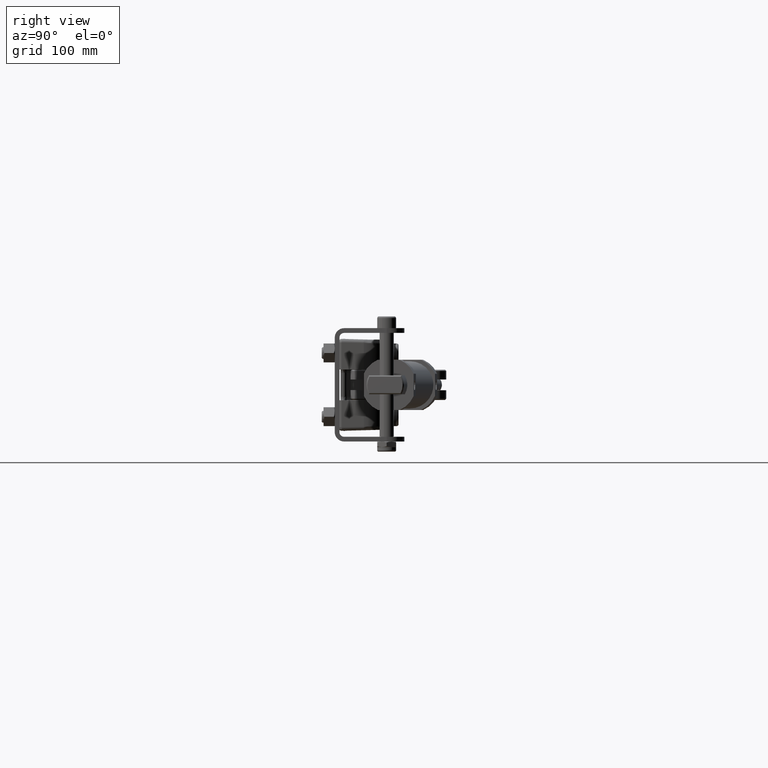
[diagram: clean part render]
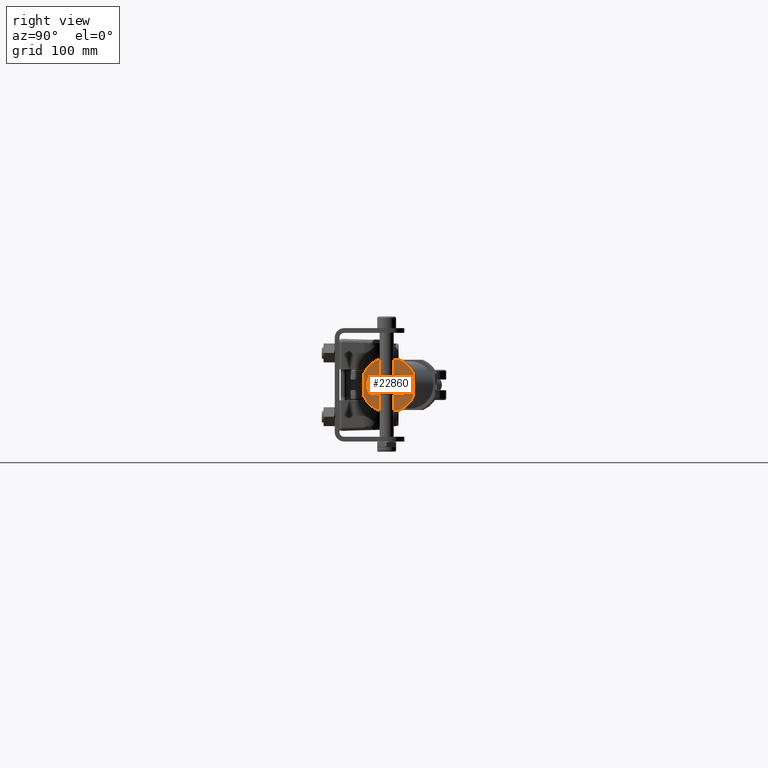
[diagram: same view with one face highlighted and labeled with its STEP entity id]
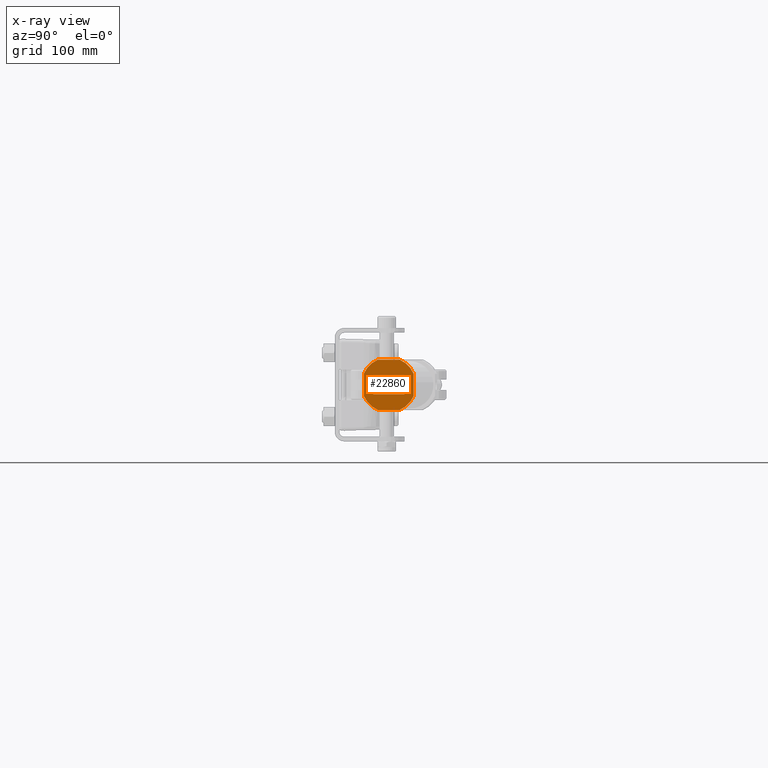
[diagram: x-ray of the same camera — body ghosted, the highlighted face saturated]
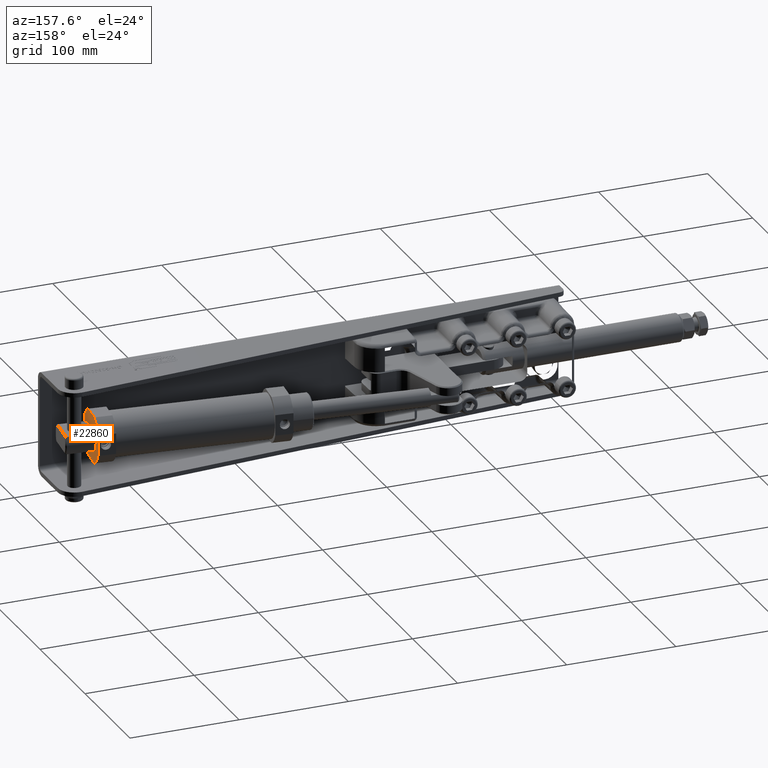
[diagram: same view with one face highlighted and labeled with its STEP entity id]
A machine part, right view. The second image highlights one B-rep face of the part: STEP entity #22860.
The next image is the same camera in x-ray: the body ghosted, the highlighted face saturated — about 0% of this face is hidden behind the body in this view.
A second angle (auxiliary view) of the same face is appended — the face is thin or edge-on in the first view.
In plain terms, the highlighted planar face has unit normal (0.9933, -0.1156, -0).
Its self-contained STEP definition (entity closure, byte-faithful):
#166 = ORIENTED_EDGE ( 'NONE', *, *, #41439, .T. ) ;
#366 = LINE ( 'NONE', #14446, #58600 ) ;
#1332 = EDGE_CURVE ( 'NONE', #44541, #42884, #14231, .T. ) ;
#1335 = CARTESIAN_POINT ( 'NONE',  ( 346.0096700810058200, 33.35175851773314500, -21.24999999999995700 ) ) ;
#1696 = DIRECTION ( 'NONE',  ( 0.9932909416624290400, -0.1156421428864285000, -1.319360731222816500E-017 ) ) ;
#3504 = CARTESIAN_POINT ( 'NONE',  ( 348.6358914866568200, 55.90929565707029500, 8.000000002686665100 ) ) ;
#3779 = PLANE ( 'NONE',  #42062 ) ;
#4603 = CARTESIAN_POINT ( 'NONE',  ( 347.1006358750636900, 42.72244651999113100, 4.227571065004303900E-014 ) ) ;
#5111 = LINE ( 'NONE', #23341, #52557 ) ;
#5590 = CIRCLE ( 'NONE', #8810, 15.49999999999999600 ) ;
#5681 = AXIS2_PLACEMENT_3D ( 'NONE', #4603, #36696, #9185 ) ;
#5824 = VERTEX_POINT ( 'NONE', #48344 ) ;
#5903 = CARTESIAN_POINT ( 'NONE',  ( 347.1006358750636900, 42.72244651999113100, 4.227571065004303900E-014 ) ) ;
#6936 = CARTESIAN_POINT ( 'NONE',  ( 349.5580314115428000, 63.82987903154205600, 9.433981129280272900 ) ) ;
#7037 = CARTESIAN_POINT ( 'NONE',  ( 347.1006358750636900, 42.72244651999113100, 21.25000000000004300 ) ) ;
#7259 = VERTEX_POINT ( 'NONE', #15525 ) ;
#7737 = VERTEX_POINT ( 'NONE', #7808 ) ;
#7808 = CARTESIAN_POINT ( 'NONE',  ( 345.5653802631146000, 29.53559737985509100, 7.999999997579571700 ) ) ;
#8560 = ORIENTED_EDGE ( 'NONE', *, *, #56863, .T. ) ;
#8810 = AXIS2_PLACEMENT_3D ( 'NONE', #14381, #46578, #19052 ) ;
#9185 = DIRECTION ( 'NONE',  ( 0.1156421428864285500, 0.9932909416624289300, -2.245814109054414200E-016 ) ) ;
#10104 = EDGE_CURVE ( 'NONE', #52175, #7737, #50665, .T. ) ;
#10498 = DIRECTION ( 'NONE',  ( 0.1156421428864285500, 0.9932909416624289300, 1.551775428494809200E-015 ) ) ;
#11935 = EDGE_CURVE ( 'NONE', #44017, #7737, #57555, .T. ) ;
#12957 = CARTESIAN_POINT ( 'NONE',  ( 349.5580314114002900, 63.82987903031775500, 21.25000000000003900 ) ) ;
#13077 = EDGE_CURVE ( 'NONE', #7259, #23064, #34079, .T. ) ;
#13661 = DIRECTION ( 'NONE',  ( -0.9932909416624290400, 0.1156421428864285000, 1.319360731222816500E-017 ) ) ;
#14043 = CARTESIAN_POINT ( 'NONE',  ( 348.1916016691215500, 52.09313452224910900, 21.25000000000003900 ) ) ;
#14067 = ORIENTED_EDGE ( 'NONE', *, *, #13077, .T. ) ;
#14231 = CIRCLE ( 'NONE', #20762, 23.24999999999999600 ) ;
#14381 = CARTESIAN_POINT ( 'NONE',  ( 347.1006358750636900, 42.72244651999113100, 4.227571065004303900E-014 ) ) ;
#14446 = CARTESIAN_POINT ( 'NONE',  ( 344.6432403387270800, 21.61501400966450600, 4.704806563178367300E-014 ) ) ;
#14459 = VERTEX_POINT ( 'NONE', #47849 ) ;
#14927 = CARTESIAN_POINT ( 'NONE',  ( 347.1006358750636900, 42.72244651999113100, 4.227571065004303900E-014 ) ) ;
#15525 = CARTESIAN_POINT ( 'NONE',  ( 344.6432403388082500, 21.61501401036216000, -9.433981133638626600 ) ) ;
#16047 = VECTOR ( 'NONE', #25811, 1000.000000000000200 ) ;
#16342 = AXIS2_PLACEMENT_3D ( 'NONE', #41215, #13661, #45846 ) ;
#17423 = ORIENTED_EDGE ( 'NONE', *, *, #32167, .T. ) ;
#17609 = DIRECTION ( 'NONE',  ( 0.9932909416624290400, -0.1156421428864285000, -1.319360731222815400E-017 ) ) ;
#17659 = DIRECTION ( 'NONE',  ( -0.9932909416624290400, 0.1156421428864285000, 1.319360731222816500E-017 ) ) ;
#19052 = DIRECTION ( 'NONE',  ( 0.1156421428864285500, 0.9932909416624290400, -2.245814109054415700E-016 ) ) ;
#19550 = VERTEX_POINT ( 'NONE', #41781 ) ;
#19616 = DIRECTION ( 'NONE',  ( 0.1156421428864285500, 0.9932909416624289300, -1.112759830605567100E-015 ) ) ;
#20762 = AXIS2_PLACEMENT_3D ( 'NONE', #29227, #1696, #33832 ) ;
#21333 = ORIENTED_EDGE ( 'NONE', *, *, #30411, .T. ) ;
#22860 = ADVANCED_FACE ( 'NONE', ( #38654, #50852 ), #3779, .T. ) ;
#23064 = VERTEX_POINT ( 'NONE', #1335 ) ;
#23325 = CIRCLE ( 'NONE', #56585, 23.24999999999999600 ) ;
#23341 = CARTESIAN_POINT ( 'NONE',  ( 347.1006358750636900, 42.72244651999112400, -21.24999999999996100 ) ) ;
#24108 = CARTESIAN_POINT ( 'NONE',  ( 348.6358914867399200, 55.90929565778382200, -8.000000001494507600 ) ) ;
#24204 = LINE ( 'NONE', #7037, #36376 ) ;
#24737 = ORIENTED_EDGE ( 'NONE', *, *, #11935, .F. ) ;
#25221 = AXIS2_PLACEMENT_3D ( 'NONE', #14927, #47098, #19616 ) ;
#25591 = EDGE_LOOP ( 'NONE', ( #51721, #24737, #166, #26643, #48671 ) ) ;
#25723 = VERTEX_POINT ( 'NONE', #24108 ) ;
#25811 = DIRECTION ( 'NONE',  ( 0.1156421428864284900, 0.9932909416624289300, -2.245814109054414700E-016 ) ) ;
#26213 = ORIENTED_EDGE ( 'NONE', *, *, #33177, .T. ) ;
#26643 = ORIENTED_EDGE ( 'NONE', *, *, #36867, .T. ) ;
#27393 = DIRECTION ( 'NONE',  ( -0.1156421428864284900, -0.9932909416624289300, 2.245814109054414700E-016 ) ) ;
#29227 = CARTESIAN_POINT ( 'NONE',  ( 347.1006358750636900, 42.72244651999113100, 4.227571065004303900E-014 ) ) ;
#30411 = EDGE_CURVE ( 'NONE', #44667, #14459, #37628, .T. ) ;
#31757 = VERTEX_POINT ( 'NONE', #34867 ) ;
#32167 = EDGE_CURVE ( 'NONE', #14459, #44541, #47463, .T. ) ;
#33177 = EDGE_CURVE ( 'NONE', #19550, #5824, #23325, .T. ) ;
#33431 = DIRECTION ( 'NONE',  ( 3.907616624065021000E-017, 2.215489440961547900E-016, 1.000000000000000000 ) ) ;
#33832 = DIRECTION ( 'NONE',  ( 0.1156421428864285500, 0.9932909416624289300, -2.245814109054414200E-016 ) ) ;
#34079 = CIRCLE ( 'NONE', #5681, 23.24999999999999600 ) ;
#34141 = DIRECTION ( 'NONE',  ( -0.1156421428864284900, -0.9932909416624289300, 2.245814109054415200E-016 ) ) ;
#34594 = EDGE_LOOP ( 'NONE', ( #45262, #21333, #17423, #50599, #8560, #26213, #54612, #14067 ) ) ;
#34867 = CARTESIAN_POINT ( 'NONE',  ( 348.8930890898033100, 58.11845611575877500, 3.879469878100869500E-014 ) ) ;
#35200 = VECTOR ( 'NONE', #33431, 1000.000000000000000 ) ;
#36376 = VECTOR ( 'NONE', #34141, 1000.000000000000100 ) ;
#36696 = DIRECTION ( 'NONE',  ( 0.9932909416624290400, -0.1156421428864285000, -1.319360731222816500E-017 ) ) ;
#36867 = EDGE_CURVE ( 'NONE', #31757, #25723, #45748, .T. ) ;
#37588 = DIRECTION ( 'NONE',  ( -3.907616624065021000E-017, -2.215489440961547900E-016, -1.000000000000000000 ) ) ;
#37628 = CIRCLE ( 'NONE', #25221, 23.24999999999999600 ) ;
#38031 = DIRECTION ( 'NONE',  ( 0.9932909416624290400, -0.1156421428864285000, -1.319360731222816500E-017 ) ) ;
#38654 = FACE_BOUND ( 'NONE', #25591, .T. ) ;
#38749 = CARTESIAN_POINT ( 'NONE',  ( 345.5653802631977100, 29.53559738056861400, -7.999999998771564000 ) ) ;
#41215 = CARTESIAN_POINT ( 'NONE',  ( 347.1006358750636900, 42.72244651999113100, 4.227571065004303900E-014 ) ) ;
#41439 = EDGE_CURVE ( 'NONE', #44017, #31757, #5590, .T. ) ;
#41781 = CARTESIAN_POINT ( 'NONE',  ( 346.0096700810715900, 33.35175851829816900, 21.25000000026514300 ) ) ;
#42062 = AXIS2_PLACEMENT_3D ( 'NONE', #12957, #17609, #49770 ) ;
#42884 = VERTEX_POINT ( 'NONE', #14043 ) ;
#42958 = EDGE_CURVE ( 'NONE', #5824, #7259, #366, .T. ) ;
#44017 = VERTEX_POINT ( 'NONE', #3504 ) ;
#44541 = VERTEX_POINT ( 'NONE', #6936 ) ;
#44667 = VERTEX_POINT ( 'NONE', #54075 ) ;
#45185 = CARTESIAN_POINT ( 'NONE',  ( 347.1006358750636900, 42.72244651999113100, 4.227571065004303900E-014 ) ) ;
#45262 = ORIENTED_EDGE ( 'NONE', *, *, #59398, .T. ) ;
#45315 = VECTOR ( 'NONE', #27393, 1000.000000000000200 ) ;
#45655 = CARTESIAN_POINT ( 'NONE',  ( 347.1006358750636900, 42.72244651999113100, 8.000000000000042600 ) ) ;
#45748 = CIRCLE ( 'NONE', #16342, 15.49999999999999600 ) ;
#45846 = DIRECTION ( 'NONE',  ( 0.1156421428864285500, 0.9932909416624290400, -2.245814109054415700E-016 ) ) ;
#46213 = DIRECTION ( 'NONE',  ( 0.1156421428864284900, 0.9932909416624289300, -2.245814109054415200E-016 ) ) ;
#46578 = DIRECTION ( 'NONE',  ( -0.9932909416624290400, 0.1156421428864285000, 1.319360731222816500E-017 ) ) ;
#47098 = DIRECTION ( 'NONE',  ( 0.9932909416624290400, -0.1156421428864285000, -1.319360731222816500E-017 ) ) ;
#47463 = LINE ( 'NONE', #51706, #35200 ) ;
#47849 = CARTESIAN_POINT ( 'NONE',  ( 349.5580314116407400, 63.82987903238347400, -9.433981127372090800 ) ) ;
#48344 = CARTESIAN_POINT ( 'NONE',  ( 344.6432403387270800, 21.61501400966451000, 9.433981132028348400 ) ) ;
#48671 = ORIENTED_EDGE ( 'NONE', *, *, #56006, .F. ) ;
#49770 = DIRECTION ( 'NONE',  ( -0.1156421428864284900, -0.9932909416624289300, 2.245814109054415200E-016 ) ) ;
#49815 = DIRECTION ( 'NONE',  ( 0.1156421428864285500, 0.9932909416624290400, -2.245814109054415700E-016 ) ) ;
#50599 = ORIENTED_EDGE ( 'NONE', *, *, #1332, .T. ) ;
#50665 = CIRCLE ( 'NONE', #58637, 15.49999999999999600 ) ;
#50852 = FACE_OUTER_BOUND ( 'NONE', #34594, .T. ) ;
#51267 = LINE ( 'NONE', #53309, #16047 ) ;
#51706 = CARTESIAN_POINT ( 'NONE',  ( 349.5580314114002900, 63.82987903031775500, 3.750335566830240400E-014 ) ) ;
#51721 = ORIENTED_EDGE ( 'NONE', *, *, #10104, .T. ) ;
#52175 = VERTEX_POINT ( 'NONE', #38749 ) ;
#52557 = VECTOR ( 'NONE', #46213, 1000.000000000000100 ) ;
#53309 = CARTESIAN_POINT ( 'NONE',  ( 347.1006358750636900, 42.72244651999112400, -7.999999999999958300 ) ) ;
#54075 = CARTESIAN_POINT ( 'NONE',  ( 348.1916016695598200, 52.09313452601328000, -21.24999999833012500 ) ) ;
#54612 = ORIENTED_EDGE ( 'NONE', *, *, #42958, .T. ) ;
#56006 = EDGE_CURVE ( 'NONE', #52175, #25723, #51267, .T. ) ;
#56585 = AXIS2_PLACEMENT_3D ( 'NONE', #5903, #38031, #10498 ) ;
#56863 = EDGE_CURVE ( 'NONE', #42884, #19550, #24204, .T. ) ;
#57555 = LINE ( 'NONE', #45655, #45315 ) ;
#58600 = VECTOR ( 'NONE', #37588, 1000.000000000000000 ) ;
#58637 = AXIS2_PLACEMENT_3D ( 'NONE', #45185, #17659, #49815 ) ;
#59398 = EDGE_CURVE ( 'NONE', #23064, #44667, #5111, .T. ) ;